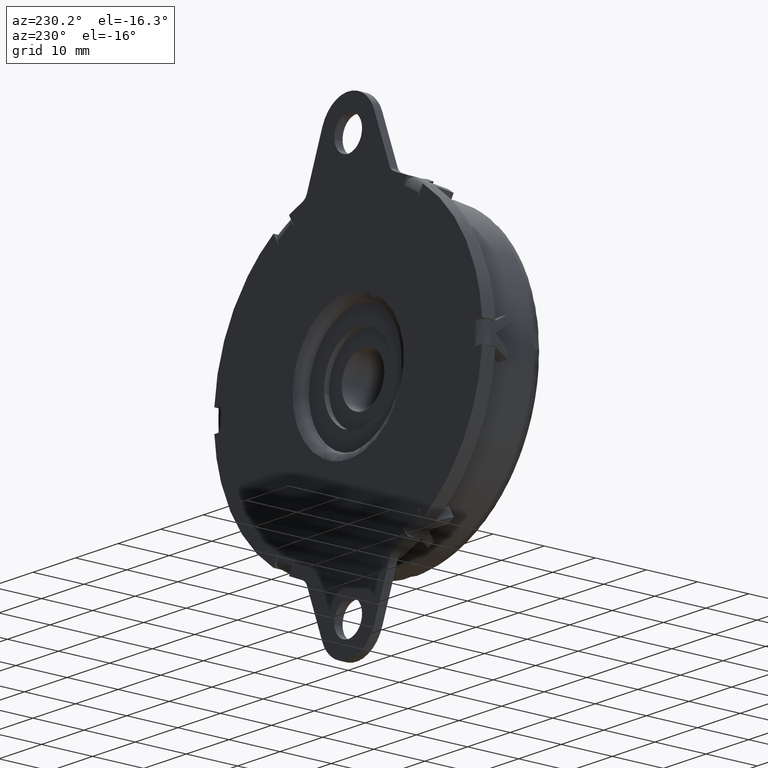
[diagram: clean part render]
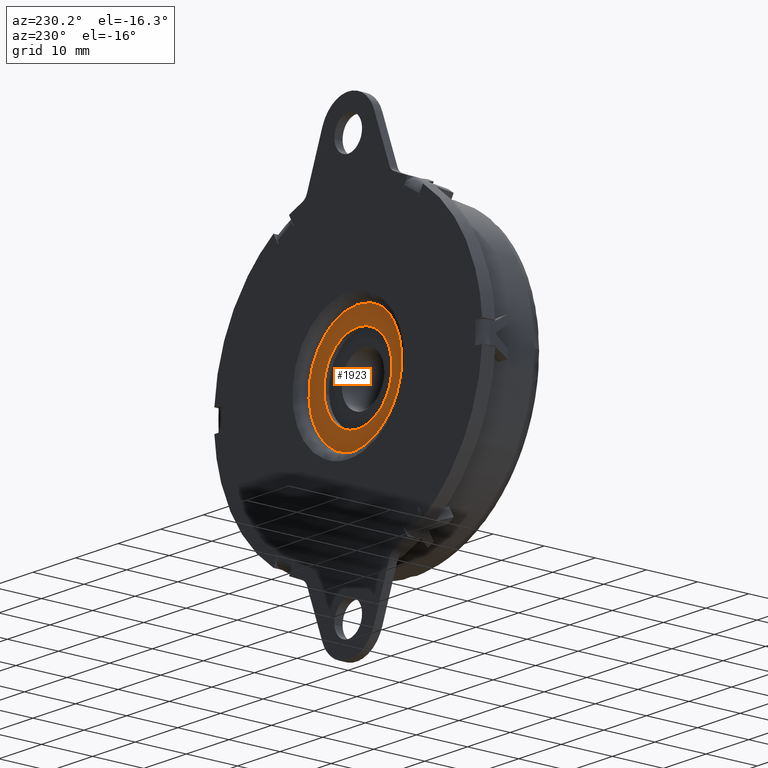
[diagram: same view with one face highlighted and labeled with its STEP entity id]
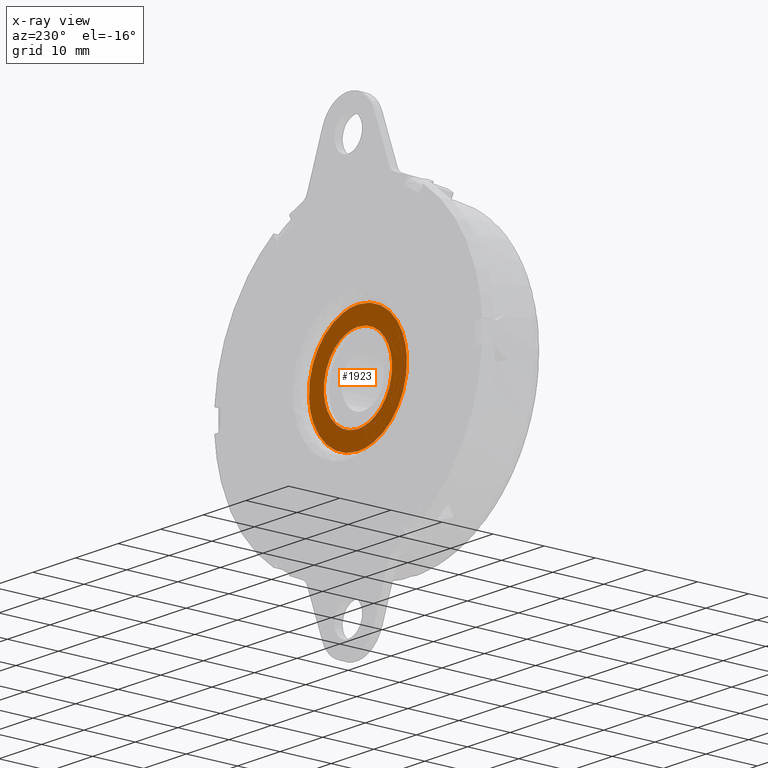
[diagram: x-ray of the same camera — body ghosted, the highlighted face saturated]
A machine part, auxiliary view. The second image highlights one B-rep face of the part: STEP entity #1923.
The next image is the same camera in x-ray: the body ghosted, the highlighted face saturated — about 0% of this face is hidden behind the body in this view.
In plain terms, the highlighted face is a freeform B-spline surface patch.
Its self-contained STEP definition (entity closure, byte-faithful):
#1681=CARTESIAN_POINT('',(-7.975339409434719,-1.900000000000125,0.627663368557216));
#1682=VERTEX_POINT('',#1681);
#1688=CARTESIAN_POINT('',(0.0,-1.900000000000125,8.0));
#1689=VERTEX_POINT('',#1688);
#1690=CARTESIAN_POINT('',(0.0,-1.900000000000125,8.0));
#1691=CARTESIAN_POINT('',(-7.395132673815079,-1.900000000000125,7.999999999999782));
#1692=CARTESIAN_POINT('',(-7.975339409434720,-1.900000000000125,0.627663368557216));
#1700=(BOUNDED_CURVE()B_SPLINE_CURVE(2,(#1690,#1691,#1692),.UNSPECIFIED.,.F.,.U.)B_SPLINE_CURVE_WITH_KNOTS((3,3),(0.0,0.236331502620635),.UNSPECIFIED.)CURVE()GEOMETRIC_REPRESENTATION_ITEM()RATIONAL_B_SPLINE_CURVE((1.0,0.723120421961689,0.969723777705469))REPRESENTATION_ITEM(''));
#1701=EDGE_CURVE('',#1689,#1682,#1700,.T.);
#1703=CARTESIAN_POINT('',(7.975339409434719,-1.900000000000125,-0.627663368557217));
#1704=VERTEX_POINT('',#1703);
#1705=CARTESIAN_POINT('',(7.975339409434720,-1.900000000000125,-0.627663368557217));
#1706=CARTESIAN_POINT('',(7.999999999994563,-1.900000000000125,-0.314316135623833));
#1707=CARTESIAN_POINT('',(7.999999999994672,-1.900000000000125,4.203571E-013));
#1708=CARTESIAN_POINT('',(7.999999999997441,-1.900000000000125,8.000000000000203));
#1709=CARTESIAN_POINT('',(0.0,-1.900000000000125,8.0));
#1717=(BOUNDED_CURVE()B_SPLINE_CURVE(2,(#1705,#1706,#1707,#1708,#1709),.UNSPECIFIED.,.F.,.U.)B_SPLINE_CURVE_WITH_KNOTS((3,2,3),(0.736331502620635,0.750000000000000,1.0),.UNSPECIFIED.)CURVE()GEOMETRIC_REPRESENTATION_ITEM()RATIONAL_B_SPLINE_CURVE((0.969723777705469,0.983986359224858,1.0,0.707106781186548,1.0))REPRESENTATION_ITEM(''));
#1718=EDGE_CURVE('',#1704,#1689,#1717,.T.);
#1750=CARTESIAN_POINT('',(0.0,-1.900000000000125,-8.0));
#1751=VERTEX_POINT('',#1750);
#1752=CARTESIAN_POINT('',(0.0,-1.900000000000125,-8.0));
#1753=CARTESIAN_POINT('',(7.395132673815078,-1.900000000000125,-7.999999999999782));
#1754=CARTESIAN_POINT('',(7.975339409434720,-1.900000000000125,-0.627663368557217));
#1762=(BOUNDED_CURVE()B_SPLINE_CURVE(2,(#1752,#1753,#1754),.UNSPECIFIED.,.F.,.U.)B_SPLINE_CURVE_WITH_KNOTS((3,3),(0.500000000000000,0.736331502620635),.UNSPECIFIED.)CURVE()GEOMETRIC_REPRESENTATION_ITEM()RATIONAL_B_SPLINE_CURVE((1.0,0.723120421961689,0.969723777705469))REPRESENTATION_ITEM(''));
#1763=EDGE_CURVE('',#1751,#1704,#1762,.T.);
#1765=CARTESIAN_POINT('',(-7.975339409434720,-1.900000000000125,0.627663368557216));
#1766=CARTESIAN_POINT('',(-7.999999999994562,-1.900000000000125,0.314316135623833));
#1767=CARTESIAN_POINT('',(-7.999999999994671,-1.900000000000125,-4.191821E-013));
#1768=CARTESIAN_POINT('',(-7.999999999997441,-1.900000000000125,-8.000000000000201));
#1769=CARTESIAN_POINT('',(0.0,-1.900000000000125,-8.0));
#1777=(BOUNDED_CURVE()B_SPLINE_CURVE(2,(#1765,#1766,#1767,#1768,#1769),.UNSPECIFIED.,.F.,.U.)B_SPLINE_CURVE_WITH_KNOTS((3,2,3),(0.236331502620635,0.250000000000000,0.500000000000000),.UNSPECIFIED.)CURVE()GEOMETRIC_REPRESENTATION_ITEM()RATIONAL_B_SPLINE_CURVE((0.969723777705469,0.983986359224858,1.0,0.707106781186548,1.0))REPRESENTATION_ITEM(''));
#1778=EDGE_CURVE('',#1682,#1751,#1777,.T.);
#1803=CARTESIAN_POINT('',(11.478550181847510,-1.900000000000120,-0.702058204715606));
#1804=VERTEX_POINT('',#1803);
#1810=CARTESIAN_POINT('',(0.0,-1.900000000000120,11.500000000000000));
#1811=VERTEX_POINT('',#1810);
#1812=CARTESIAN_POINT('',(11.478550181847517,-1.900000000000120,-0.702058204715607));
#1813=CARTESIAN_POINT('',(11.500000000000004,-1.900000000000120,-0.351356777966239));
#1814=CARTESIAN_POINT('',(11.500000000000000,-1.900000000000120,3.310987E-016));
#1815=CARTESIAN_POINT('',(11.500000000000000,-1.900000000000120,11.500000000000000));
#1816=CARTESIAN_POINT('',(0.0,-1.900000000000120,11.500000000000000));
#1824=(BOUNDED_CURVE()B_SPLINE_CURVE(2,(#1812,#1813,#1814,#1815,#1816),.UNSPECIFIED.,.F.,.U.)B_SPLINE_CURVE_WITH_KNOTS((3,2,3),(0.239332962240995,0.250000000000000,0.500000000000000),.UNSPECIFIED.)CURVE()GEOMETRIC_REPRESENTATION_ITEM()RATIONAL_B_SPLINE_CURVE((0.976072041671116,0.987502787902241,1.0,0.707106781186548,1.0))REPRESENTATION_ITEM(''));
#1825=EDGE_CURVE('',#1804,#1811,#1824,.T.);
#1827=CARTESIAN_POINT('',(-11.478550181847510,-1.900000000000120,0.702058204715609));
#1828=VERTEX_POINT('',#1827);
#1829=CARTESIAN_POINT('',(0.0,-1.900000000000120,11.500000000000000));
#1830=CARTESIAN_POINT('',(-10.818119769354347,-1.900000000000120,11.500000000000000));
#1831=CARTESIAN_POINT('',(-11.478550181847506,-1.900000000000121,0.702058204715611));
#1839=(BOUNDED_CURVE()B_SPLINE_CURVE(2,(#1829,#1830,#1831),.UNSPECIFIED.,.F.,.U.)B_SPLINE_CURVE_WITH_KNOTS((3,3),(0.500000000000000,0.739332962240995),.UNSPECIFIED.)CURVE()GEOMETRIC_REPRESENTATION_ITEM()RATIONAL_B_SPLINE_CURVE((1.0,0.719603993284306,0.976072041671116))REPRESENTATION_ITEM(''));
#1840=EDGE_CURVE('',#1811,#1828,#1839,.T.);
#1872=CARTESIAN_POINT('',(0.0,-1.900000000000120,-11.500000000000000));
#1873=VERTEX_POINT('',#1872);
#1874=CARTESIAN_POINT('',(-11.478550181847506,-1.900000000000121,0.702058204715611));
#1875=CARTESIAN_POINT('',(-11.500000000000004,-1.900000000000120,0.351356777966242));
#1876=CARTESIAN_POINT('',(-11.500000000000000,-1.900000000000120,3.310987E-016));
#1877=CARTESIAN_POINT('',(-11.500000000000000,-1.900000000000120,-11.500000000000000));
#1878=CARTESIAN_POINT('',(0.0,-1.900000000000120,-11.500000000000000));
#1886=(BOUNDED_CURVE()B_SPLINE_CURVE(2,(#1874,#1875,#1876,#1877,#1878),.UNSPECIFIED.,.F.,.U.)B_SPLINE_CURVE_WITH_KNOTS((3,2,3),(0.739332962240995,0.750000000000000,1.0),.UNSPECIFIED.)CURVE()GEOMETRIC_REPRESENTATION_ITEM()RATIONAL_B_SPLINE_CURVE((0.976072041671116,0.987502787902241,1.0,0.707106781186548,1.0))REPRESENTATION_ITEM(''));
#1887=EDGE_CURVE('',#1828,#1873,#1886,.T.);
#1889=CARTESIAN_POINT('',(0.0,-1.900000000000120,-11.500000000000000));
#1890=CARTESIAN_POINT('',(10.818119769354348,-1.900000000000120,-11.499999999999998));
#1891=CARTESIAN_POINT('',(11.478550181847517,-1.900000000000120,-0.702058204715607));
#1899=(BOUNDED_CURVE()B_SPLINE_CURVE(2,(#1889,#1890,#1891),.UNSPECIFIED.,.F.,.U.)B_SPLINE_CURVE_WITH_KNOTS((3,3),(0.0,0.239332962240995),.UNSPECIFIED.)CURVE()GEOMETRIC_REPRESENTATION_ITEM()RATIONAL_B_SPLINE_CURVE((1.0,0.719603993284306,0.976072041671116))REPRESENTATION_ITEM(''));
#1900=EDGE_CURVE('',#1873,#1804,#1899,.T.);
#1906=CARTESIAN_POINT('',(-12.648566954055649,-1.900000000000120,12.648849955421539));
#1907=CARTESIAN_POINT('',(12.648566542783600,-1.900000000000120,12.648849955421539));
#1908=CARTESIAN_POINT('',(-12.648566954055649,-1.900000000000120,-12.648850572329611));
#1909=CARTESIAN_POINT('',(12.648566542783600,-1.900000000000120,-12.648850572329611));
#1910=B_SPLINE_SURFACE_WITH_KNOTS('',1,1,((#1906,#1908),(#1907,#1909)),.UNSPECIFIED.,.F.,.F.,.U.,(2,2),(2,2),(0.0,25.297133496839241),(0.0,25.297700527751150),.UNSPECIFIED.);
#1911=ORIENTED_EDGE('',*,*,#1887,.F.);
#1912=ORIENTED_EDGE('',*,*,#1840,.F.);
#1913=ORIENTED_EDGE('',*,*,#1825,.F.);
#1914=ORIENTED_EDGE('',*,*,#1900,.F.);
#1915=EDGE_LOOP('',(#1911,#1912,#1913,#1914));
#1916=FACE_OUTER_BOUND('',#1915,.T.);
#1917=ORIENTED_EDGE('',*,*,#1763,.T.);
#1918=ORIENTED_EDGE('',*,*,#1718,.T.);
#1919=ORIENTED_EDGE('',*,*,#1701,.T.);
#1920=ORIENTED_EDGE('',*,*,#1778,.T.);
#1921=EDGE_LOOP('',(#1917,#1918,#1919,#1920));
#1922=FACE_BOUND('',#1921,.T.);
#1923=ADVANCED_FACE('',(#1916,#1922),#1910,.T.);